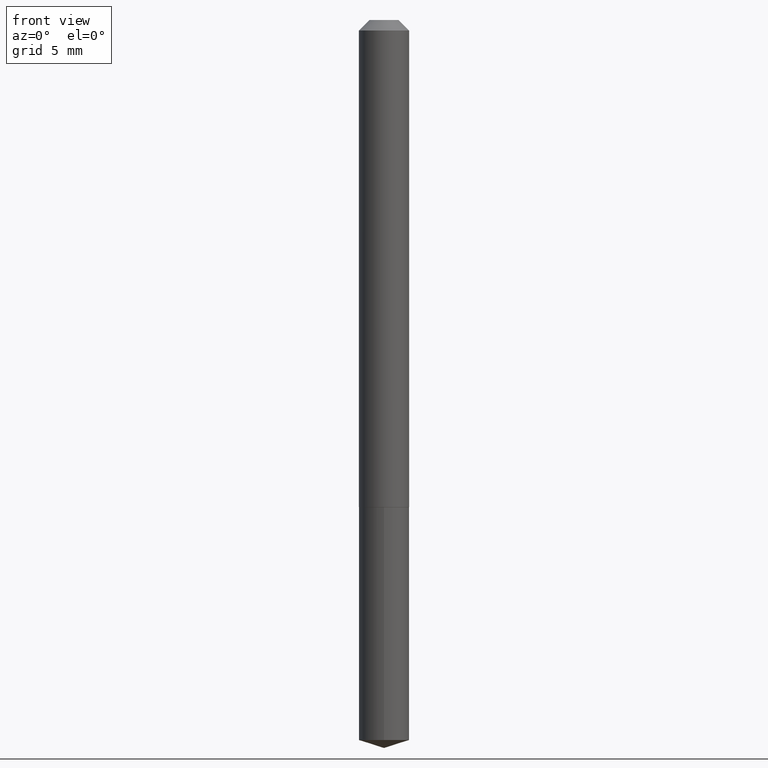
[diagram: clean part render]
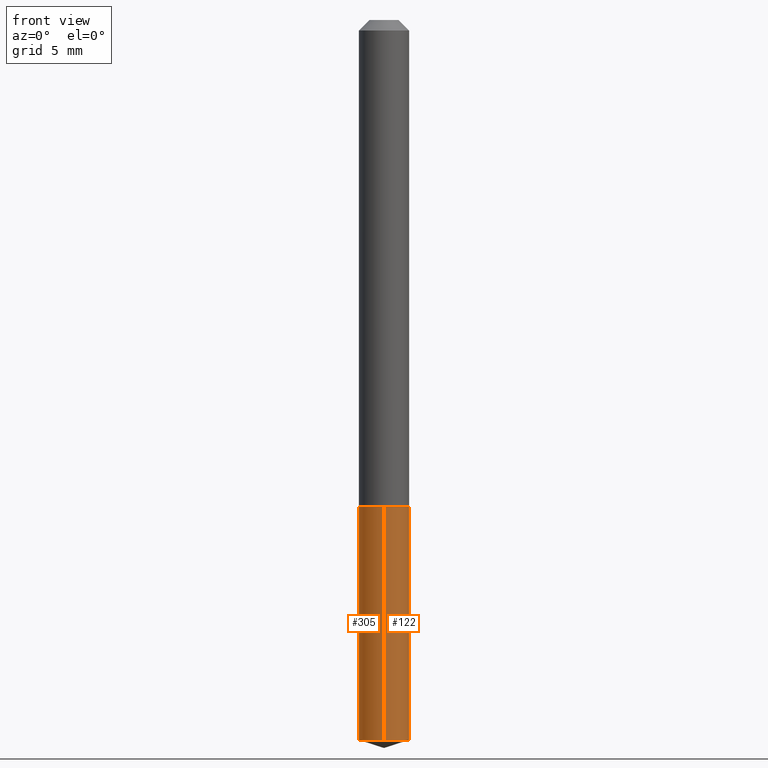
[diagram: same view with one multi-face feature highlighted, each face labeled with its STEP entity id]
A machine part, front view. The highlighted faces form ONE feature: a constant-radius fillet chain: 2 tangent blend faces with common blend radius 1.8999 mm. The faces share edges in the B-rep.
Their STEP definitions:
[1] entity #305 (Cylinder):
#3 = DIRECTION ( 'NONE',  ( -2.445414835624090141E-29, 3.491558627758377320E-15, 1.000000000000000000 ) ) ;
#28 = CARTESIAN_POINT ( 'NONE',  ( -5.223256082908801440E-16, -0.07480000000000745775, -2.141815650591851750 ) ) ;
#38 = FACE_OUTER_BOUND ( 'NONE', #281, .T. ) ;
#39 = VERTEX_POINT ( 'NONE', #176 ) ;
#40 = CARTESIAN_POINT ( 'NONE',  ( 3.543239753281644463E-29, -5.058807311849834990E-15, -1.448900000000000299 ) ) ;
#43 = VERTEX_POINT ( 'NONE', #28 ) ;
#44 = VERTEX_POINT ( 'NONE', #265 ) ;
#57 = DIRECTION ( 'NONE',  ( -6.982962677686265922E-15, -1.000000000000000000, 3.652203200085913934E-15 ) ) ;
#64 = CARTESIAN_POINT ( 'NONE',  ( 5.314859663485902787E-16, 0.07479999999999492610, -1.448900000000000521 ) ) ;
#83 = VECTOR ( 'NONE', #155, 39.37007874015748143 ) ;
#113 = CARTESIAN_POINT ( 'NONE',  ( 3.543239753281644463E-29, -5.058807311849834990E-15, -1.448900000000000299 ) ) ;
#123 = CIRCLE ( 'NONE', #264, 0.07479999999999999150 ) ;
#138 = VECTOR ( 'NONE', #3, 39.37007874015748143 ) ;
#155 = DIRECTION ( 'NONE',  ( -2.445414835624090141E-29, 3.491558627758377320E-15, 1.000000000000000000 ) ) ;
#162 = AXIS2_PLACEMENT_3D ( 'NONE', #40, #163, #187 ) ;
#163 = DIRECTION ( 'NONE',  ( -2.445414835624090421E-29, 3.491558627758377320E-15, 1.000000000000000000 ) ) ;
#174 = ORIENTED_EDGE ( 'NONE', *, *, #240, .T. ) ;
#176 = CARTESIAN_POINT ( 'NONE',  ( -5.223256082908973017E-16, -0.07480000000000507077, -1.448899999999999855 ) ) ;
#187 = DIRECTION ( 'NONE',  ( -6.982962677686265922E-15, -1.000000000000000000, 3.652203200085913934E-15 ) ) ;
#189 = LINE ( 'NONE', #64, #138 ) ;
#192 = ORIENTED_EDGE ( 'NONE', *, *, #384, .F. ) ;
#218 = EDGE_CURVE ( 'NONE', #368, #39, #233, .T. ) ;
#233 = CIRCLE ( 'NONE', #238, 0.07480000000000000537 ) ;
#234 = DIRECTION ( 'NONE',  ( -6.982962677686265922E-15, -1.000000000000000000, 3.652203200085913145E-15 ) ) ;
#238 = AXIS2_PLACEMENT_3D ( 'NONE', #113, #382, #234 ) ;
#240 = EDGE_CURVE ( 'NONE', #44, #43, #123, .T. ) ;
#245 = CARTESIAN_POINT ( 'NONE',  ( -5.223256082908972031E-16, -0.07480000000000505689, -1.448899999999999855 ) ) ;
#264 = AXIS2_PLACEMENT_3D ( 'NONE', #324, #326, #57 ) ;
#265 = CARTESIAN_POINT ( 'NONE',  ( 5.314859663486070420E-16, 0.07479999999999249749, -2.141815650591852194 ) ) ;
#281 = EDGE_LOOP ( 'NONE', ( #192, #174, #291, #338 ) ) ;
#291 = ORIENTED_EDGE ( 'NONE', *, *, #339, .T. ) ;
#301 = CARTESIAN_POINT ( 'NONE',  ( 5.314859663486073379E-16, 0.07479999999999493998, -1.448900000000000521 ) ) ;
#303 = CYLINDRICAL_SURFACE ( 'NONE', #162, 0.07479999999999999150 ) ;
#305 = ADVANCED_FACE ( 'NONE', ( #38 ), #303, .T. ) ;
#324 = CARTESIAN_POINT ( 'NONE',  ( 5.237705965075076905E-29, -7.478162929982624037E-15, -2.141815650591851750 ) ) ;
#326 = DIRECTION ( 'NONE',  ( -2.445414835624090421E-29, 3.491558627758377320E-15, 1.000000000000000000 ) ) ;
#338 = ORIENTED_EDGE ( 'NONE', *, *, #218, .F. ) ;
#339 = EDGE_CURVE ( 'NONE', #43, #39, #366, .T. ) ;
#366 = LINE ( 'NONE', #245, #83 ) ;
#368 = VERTEX_POINT ( 'NONE', #301 ) ;
#382 = DIRECTION ( 'NONE',  ( -2.445414835624090421E-29, 3.491558627758377320E-15, 1.000000000000000000 ) ) ;
#384 = EDGE_CURVE ( 'NONE', #44, #368, #189, .T. ) ;
[2] entity #122 (Cylinder):
#3 = DIRECTION ( 'NONE',  ( -2.445414835624090141E-29, 3.491558627758377320E-15, 1.000000000000000000 ) ) ;
#12 = CARTESIAN_POINT ( 'NONE',  ( 5.237705965075076905E-29, -7.478162929982624037E-15, -2.141815650591851750 ) ) ;
#15 = EDGE_CURVE ( 'NONE', #43, #44, #188, .T. ) ;
#28 = CARTESIAN_POINT ( 'NONE',  ( -5.223256082908801440E-16, -0.07480000000000745775, -2.141815650591851750 ) ) ;
#39 = VERTEX_POINT ( 'NONE', #176 ) ;
#43 = VERTEX_POINT ( 'NONE', #28 ) ;
#44 = VERTEX_POINT ( 'NONE', #265 ) ;
#52 = ORIENTED_EDGE ( 'NONE', *, *, #384, .T. ) ;
#55 = DIRECTION ( 'NONE',  ( -6.982962677686265922E-15, -1.000000000000000000, 3.652203200085913934E-15 ) ) ;
#61 = DIRECTION ( 'NONE',  ( -2.445414835624090421E-29, 3.491558627758377320E-15, 1.000000000000000000 ) ) ;
#62 = AXIS2_PLACEMENT_3D ( 'NONE', #84, #61, #55 ) ;
#64 = CARTESIAN_POINT ( 'NONE',  ( 5.314859663485902787E-16, 0.07479999999999492610, -1.448900000000000521 ) ) ;
#66 = DIRECTION ( 'NONE',  ( -6.982962677686265922E-15, -1.000000000000000000, 3.652203200085913145E-15 ) ) ;
#67 = CARTESIAN_POINT ( 'NONE',  ( 3.543239753281644463E-29, -5.058807311849834990E-15, -1.448900000000000299 ) ) ;
#73 = CIRCLE ( 'NONE', #247, 0.07480000000000000537 ) ;
#75 = EDGE_LOOP ( 'NONE', ( #197, #52, #311, #372 ) ) ;
#83 = VECTOR ( 'NONE', #155, 39.37007874015748143 ) ;
#84 = CARTESIAN_POINT ( 'NONE',  ( 3.543239753281644463E-29, -5.058807311849834990E-15, -1.448900000000000299 ) ) ;
#122 = ADVANCED_FACE ( 'NONE', ( #146 ), #262, .T. ) ;
#138 = VECTOR ( 'NONE', #3, 39.37007874015748143 ) ;
#142 = DIRECTION ( 'NONE',  ( -2.445414835624090421E-29, 3.491558627758377320E-15, 1.000000000000000000 ) ) ;
#146 = FACE_OUTER_BOUND ( 'NONE', #75, .T. ) ;
#155 = DIRECTION ( 'NONE',  ( -2.445414835624090141E-29, 3.491558627758377320E-15, 1.000000000000000000 ) ) ;
#176 = CARTESIAN_POINT ( 'NONE',  ( -5.223256082908973017E-16, -0.07480000000000507077, -1.448899999999999855 ) ) ;
#188 = CIRCLE ( 'NONE', #373, 0.07479999999999999150 ) ;
#189 = LINE ( 'NONE', #64, #138 ) ;
#197 = ORIENTED_EDGE ( 'NONE', *, *, #15, .T. ) ;
#245 = CARTESIAN_POINT ( 'NONE',  ( -5.223256082908972031E-16, -0.07480000000000505689, -1.448899999999999855 ) ) ;
#247 = AXIS2_PLACEMENT_3D ( 'NONE', #67, #360, #66 ) ;
#254 = DIRECTION ( 'NONE',  ( -6.982962677686265922E-15, -1.000000000000000000, 3.652203200085913934E-15 ) ) ;
#262 = CYLINDRICAL_SURFACE ( 'NONE', #62, 0.07479999999999999150 ) ;
#265 = CARTESIAN_POINT ( 'NONE',  ( 5.314859663486070420E-16, 0.07479999999999249749, -2.141815650591852194 ) ) ;
#301 = CARTESIAN_POINT ( 'NONE',  ( 5.314859663486073379E-16, 0.07479999999999493998, -1.448900000000000521 ) ) ;
#311 = ORIENTED_EDGE ( 'NONE', *, *, #327, .F. ) ;
#327 = EDGE_CURVE ( 'NONE', #39, #368, #73, .T. ) ;
#339 = EDGE_CURVE ( 'NONE', #43, #39, #366, .T. ) ;
#360 = DIRECTION ( 'NONE',  ( -2.445414835624090421E-29, 3.491558627758377320E-15, 1.000000000000000000 ) ) ;
#366 = LINE ( 'NONE', #245, #83 ) ;
#368 = VERTEX_POINT ( 'NONE', #301 ) ;
#372 = ORIENTED_EDGE ( 'NONE', *, *, #339, .F. ) ;
#373 = AXIS2_PLACEMENT_3D ( 'NONE', #12, #142, #254 ) ;
#384 = EDGE_CURVE ( 'NONE', #44, #368, #189, .T. ) ;